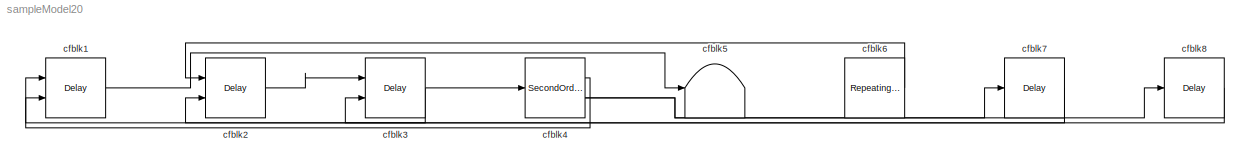
MODEL sampleModel20
KIND model
BLOCK [Delay] cfblk1
  DelayLengthSource = Input port
  InputPortMap = u0,p1
  Ports = [2, 1]
  SID = 1
  SampleTime = 1
BLOCK [Delay] cfblk2
  InputPortMap = u0,e6
  Ports = [2, 1]
  SID = 2
  SampleTime = 1
  ShowEnablePort = on
BLOCK [Delay] cfblk3
  DelayLengthSource = Input port
  InputPortMap = u0,p1
  Ports = [2, 1]
  SID = 3
  SampleTime = 1
BLOCK [SecondOrderIntegrator] cfblk4
  Ports = [1, 2]
  SID = 4
BLOCK [Terminator] cfblk5
  SID = 5
BLOCK [Reference] cfblk6  REF=simulink/Sources/Repeating\nSequence\nStair
  ConRadixGroup = Best Precision: Vector-wise
  LockScale = off
  OutDataType = fixdt(0,8)
  OutDataTypeStr = double
  OutMax = []
  OutMin = []
  OutScaling = 2^-12
  OutValues = [3 1 4 2 1].'
  OutputDataTypeScalingMode = double
  Ports = [0, 1]
  SID = 6
  SourceBlock = simulink/Sources/Repeating\nSequence\nStair
  SourceProductBaseCode = SL
  SourceProductName = Simulink
  SourceType = Repeating Sequence Stair
  tsamp = -1
BLOCK [Delay] cfblk7
  InputPortMap = u0
  Ports = [1, 1]
  SID = 7
  SampleTime = 1
BLOCK [Delay] cfblk8
  InputPortMap = u0
  Ports = [1, 1]
  SID = 8
  SampleTime = 1
LINE cfblk1:1 -> cfblk5:1
LINE cfblk2:1 -> cfblk3:1
NET cfblk3:1 -> cfblk1:1, cfblk4:1
LINE cfblk4:1 -> cfblk1:2
NET cfblk4:2 -> cfblk7:1, cfblk8:1
LINE cfblk6:1 -> cfblk2:1
LINE cfblk7:1 -> cfblk3:2
LINE cfblk8:1 -> cfblk2:2
note: NET lines group one-source signal fan-out (src -> all destinations, sorted); 1:1 wires keep LINE
